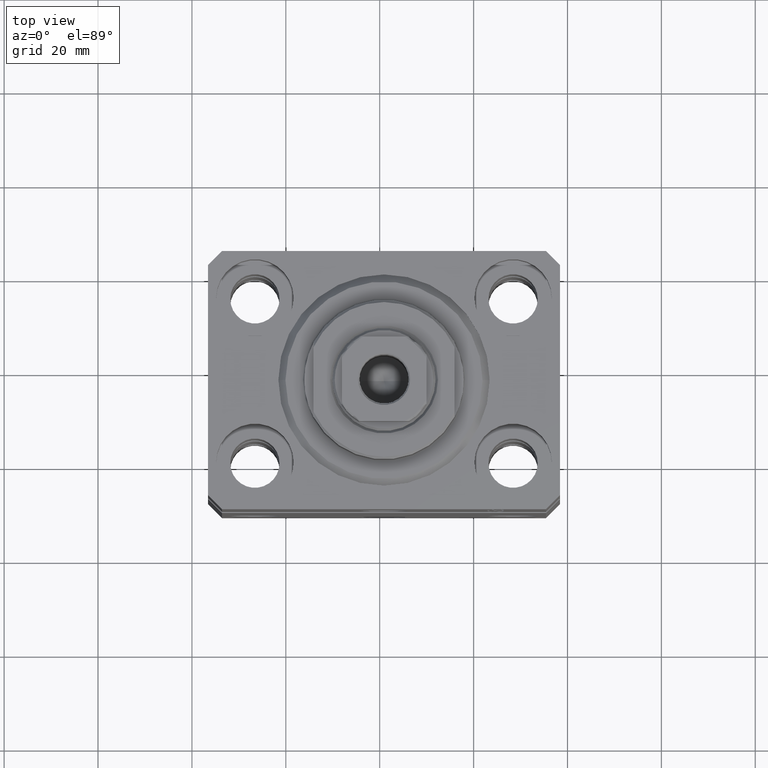
[diagram: clean part render]
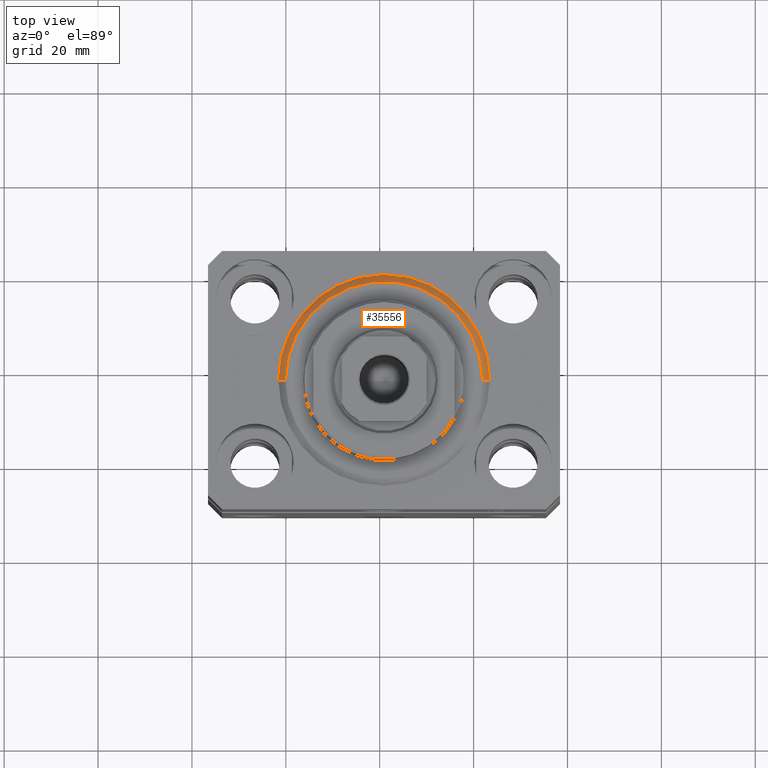
[diagram: same view with one face highlighted and labeled with its STEP entity id]
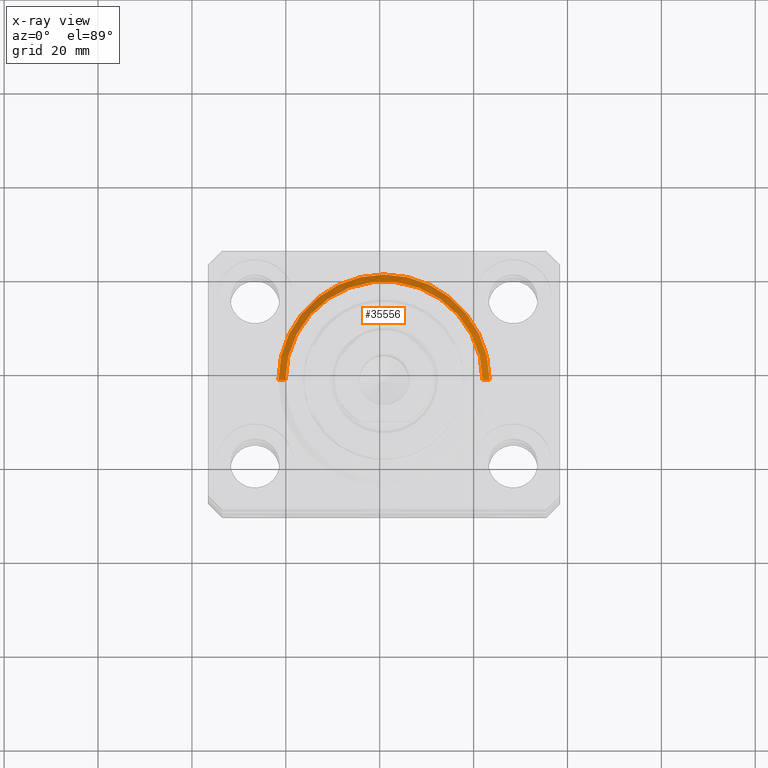
[diagram: x-ray of the same camera — body ghosted, the highlighted face saturated]
A machine part, top view. The second image highlights one B-rep face of the part: STEP entity #35556.
The next image is the same camera in x-ray: the body ghosted, the highlighted face saturated — about 0% of this face is hidden behind the body in this view.
In plain terms, the highlighted conical surface has half-angle 45 deg.
Its self-contained STEP definition (entity closure, byte-faithful):
#1009 = ORIENTED_EDGE ( 'NONE', *, *, #3107, .T. ) ;
#1630 = EDGE_LOOP ( 'NONE', ( #24429, #1009, #22153, #27953 ) ) ;
#2537 = EDGE_CURVE ( 'NONE', #4350, #27115, #13210, .T. ) ;
#2572 = EDGE_CURVE ( 'NONE', #19227, #21782, #19043, .T. ) ;
#3020 = CARTESIAN_POINT ( 'NONE',  ( 22.50000000000000355, 0.000000000000000000, 1.500000000000001332 ) ) ;
#3107 = EDGE_CURVE ( 'NONE', #19227, #27115, #30730, .T. ) ;
#4350 = VERTEX_POINT ( 'NONE', #40074 ) ;
#5203 = CARTESIAN_POINT ( 'NONE',  ( 0.000000000000000000, 0.000000000000000000, 1.500000000000001332 ) ) ;
#5438 = DIRECTION ( 'NONE',  ( 1.000000000000000000, 0.000000000000000000, 0.000000000000000000 ) ) ;
#6777 = CARTESIAN_POINT ( 'NONE',  ( 20.99999999999998934, 0.000000000000000000, 0.000000000000000000 ) ) ;
#7435 = VECTOR ( 'NONE', #40568, 1000.000000000000114 ) ;
#7867 = DIRECTION ( 'NONE',  ( -0.000000000000000000, -0.000000000000000000, -1.000000000000000000 ) ) ;
#8315 = CARTESIAN_POINT ( 'NONE',  ( 0.000000000000000000, 0.000000000000000000, 0.000000000000000000 ) ) ;
#8859 = AXIS2_PLACEMENT_3D ( 'NONE', #8315, #7867, #29072 ) ;
#12494 = DIRECTION ( 'NONE',  ( -0.000000000000000000, -0.000000000000000000, 1.000000000000000000 ) ) ;
#13210 = CIRCLE ( 'NONE', #38734, 22.50000000000000355 ) ;
#13443 = VECTOR ( 'NONE', #41356, 1000.000000000000114 ) ;
#13914 = EDGE_CURVE ( 'NONE', #21782, #4350, #30390, .T. ) ;
#14342 = CARTESIAN_POINT ( 'NONE',  ( -22.50000000000000355, 0.000000000000000000, 1.500000000000001332 ) ) ;
#19043 = CIRCLE ( 'NONE', #8859, 20.99999999999998934 ) ;
#19227 = VERTEX_POINT ( 'NONE', #41547 ) ;
#21782 = VERTEX_POINT ( 'NONE', #6777 ) ;
#22153 = ORIENTED_EDGE ( 'NONE', *, *, #2537, .F. ) ;
#24429 = ORIENTED_EDGE ( 'NONE', *, *, #2572, .F. ) ;
#24758 = DIRECTION ( 'NONE',  ( -0.000000000000000000, -0.000000000000000000, 1.000000000000000000 ) ) ;
#27115 = VERTEX_POINT ( 'NONE', #14342 ) ;
#27953 = ORIENTED_EDGE ( 'NONE', *, *, #13914, .F. ) ;
#29072 = DIRECTION ( 'NONE',  ( 1.000000000000000000, 0.000000000000000000, 0.000000000000000000 ) ) ;
#30390 = LINE ( 'NONE', #3020, #13443 ) ;
#30730 = LINE ( 'NONE', #44686, #7435 ) ;
#31827 = CARTESIAN_POINT ( 'NONE',  ( 0.000000000000000000, 0.000000000000000000, 1.500000000000001332 ) ) ;
#35486 = DIRECTION ( 'NONE',  ( 1.000000000000000000, 0.000000000000000000, 0.000000000000000000 ) ) ;
#35556 = ADVANCED_FACE ( 'NONE', ( #40109 ), #37335, .T. ) ;
#37335 = CONICAL_SURFACE ( 'NONE', #39539, 22.50000000000000355, 0.7853981633974517207 ) ;
#38734 = AXIS2_PLACEMENT_3D ( 'NONE', #31827, #24758, #35486 ) ;
#39539 = AXIS2_PLACEMENT_3D ( 'NONE', #5203, #12494, #5438 ) ;
#40074 = CARTESIAN_POINT ( 'NONE',  ( 22.50000000000000355, 2.755455298081545172E-15, 1.500000000000001332 ) ) ;
#40109 = FACE_OUTER_BOUND ( 'NONE', #1630, .T. ) ;
#40568 = DIRECTION ( 'NONE',  ( -0.7071067811865500152, 8.659560562354963673E-17, 0.7071067811865451302 ) ) ;
#41356 = DIRECTION ( 'NONE',  ( 0.7071067811865500152, 0.000000000000000000, 0.7071067811865451302 ) ) ;
#41547 = CARTESIAN_POINT ( 'NONE',  ( -20.99999999999998934, 2.663606788145492628E-15, 0.000000000000000000 ) ) ;
#44686 = CARTESIAN_POINT ( 'NONE',  ( -22.50000000000000355, 2.755455298081545172E-15, 1.500000000000001332 ) ) ;